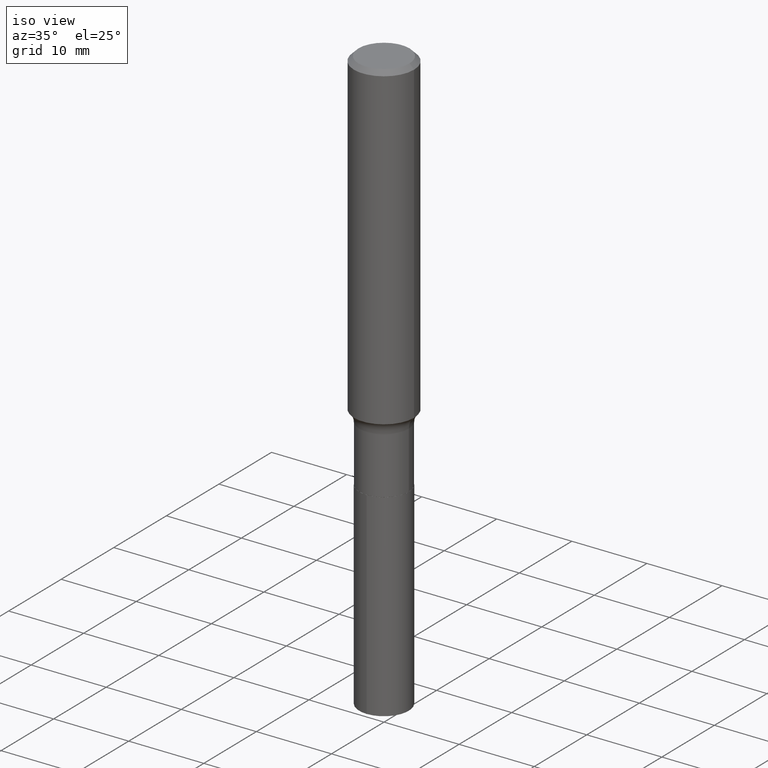
[diagram: clean part render]
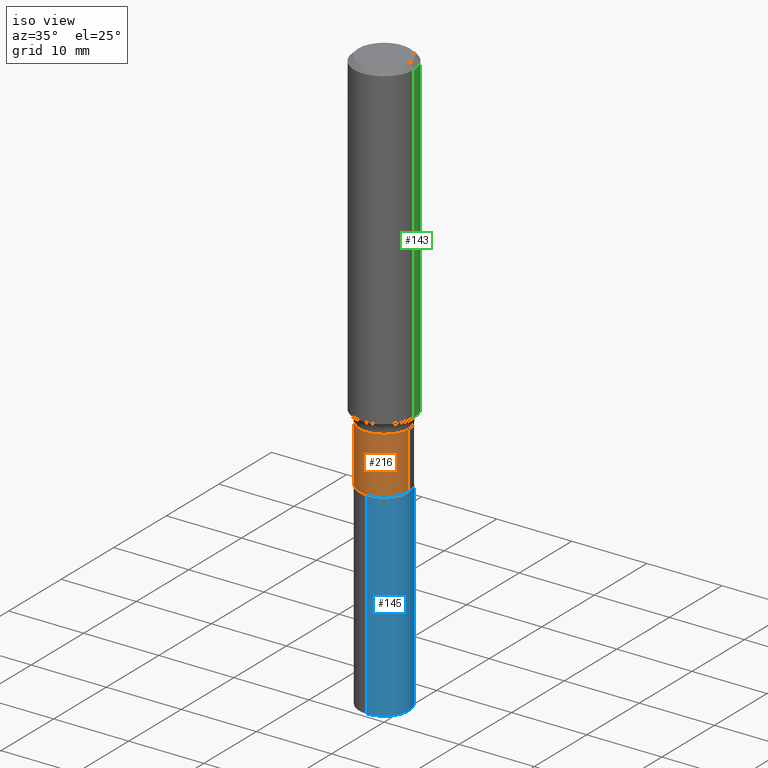
[diagram: same view with three faces highlighted in distinct colors, each labeled with its STEP entity id]
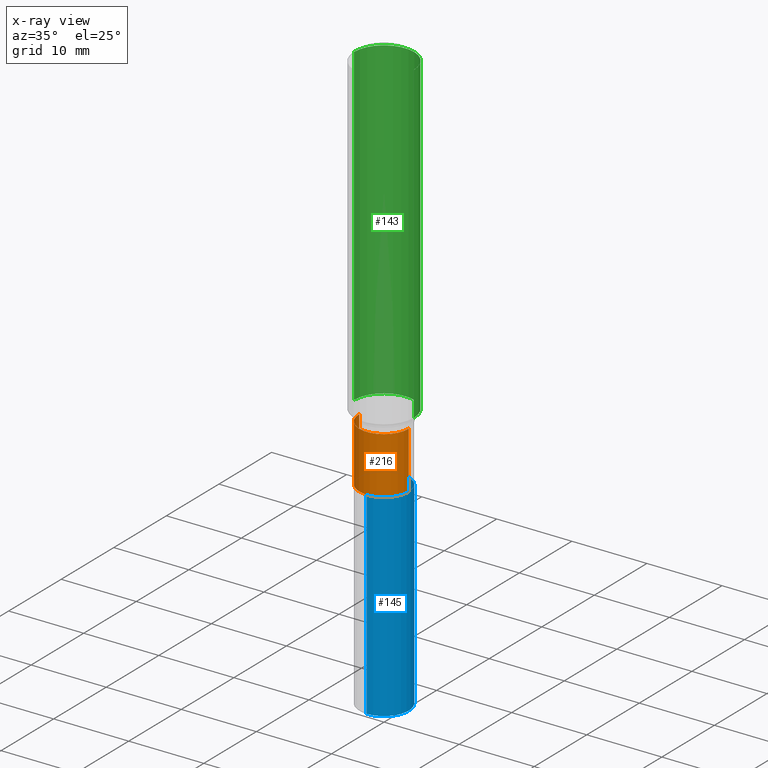
[diagram: x-ray of the same camera — body ghosted, the three highlighted faces saturated]
A machine part, iso view with three faces highlighted in distinct colors.
The next image is the same camera in x-ray (body ghosted, the three faces saturated) — at least one of them is partly hidden behind the body in this view.
Their STEP definitions:

[orange] entity #216 — the highlighted cylindrical surface (edge-blend (fillet) strip) has radius 3.2995 mm, axis along (-0, 0, 1).
#18 = AXIS2_PLACEMENT_3D ( 'NONE', #47, #172, #331 ) ;
#20 = CARTESIAN_POINT ( 'NONE',  ( 0.1298999999999999877, -7.997936302887991205E-15, -2.030900000000000372 ) ) ;
#21 = CYLINDRICAL_SURFACE ( 'NONE', #18, 0.1298999999999999877 ) ;
#25 = VERTEX_POINT ( 'NONE', #377 ) ;
#47 = CARTESIAN_POINT ( 'NONE',  ( 0.000000000000000000, 0.000000000000000000, 0.000000000000000000 ) ) ;
#53 = ORIENTED_EDGE ( 'NONE', *, *, #210, .T. ) ;
#96 = FACE_OUTER_BOUND ( 'NONE', #343, .T. ) ;
#103 = LINE ( 'NONE', #262, #252 ) ;
#104 = CIRCLE ( 'NONE', #382, 0.1298999999999999877 ) ;
#115 = ORIENTED_EDGE ( 'NONE', *, *, #486, .F. ) ;
#134 = DIRECTION ( 'NONE',  ( 1.000000000000000000, -6.982962677686268288E-15, 0.000000000000000000 ) ) ;
#135 = CIRCLE ( 'NONE', #468, 0.1298999999999999599 ) ;
#163 = CARTESIAN_POINT ( 'NONE',  ( -0.1298999999999999599, -5.647099995615719937E-15, -1.732600000000000362 ) ) ;
#165 = EDGE_CURVE ( 'NONE', #25, #480, #104, .T. ) ;
#172 = DIRECTION ( 'NONE',  ( -2.445468806185136597E-29, 3.491481338843145583E-15, 1.000000000000000000 ) ) ;
#190 = VECTOR ( 'NONE', #233, 39.37007874015748143 ) ;
#210 = EDGE_CURVE ( 'NONE', #480, #415, #270, .T. ) ;
#216 = ADVANCED_FACE ( 'NONE', ( #96 ), #21, .T. ) ;
#228 = EDGE_CURVE ( 'NONE', #25, #410, #103, .T. ) ;
#233 = DIRECTION ( 'NONE',  ( -2.445468806185136877E-29, 3.491481338843145188E-15, 1.000000000000000000 ) ) ;
#237 = ORIENTED_EDGE ( 'NONE', *, *, #228, .F. ) ;
#252 = VECTOR ( 'NONE', #411, 39.37007874015748143 ) ;
#262 = CARTESIAN_POINT ( 'NONE',  ( -0.1298999999999999877, 9.229950137523700540E-16, -6.389696682241121810E-30 ) ) ;
#270 = LINE ( 'NONE', #304, #190 ) ;
#293 = DIRECTION ( 'NONE',  ( -2.445468806185136597E-29, 3.491481338843145583E-15, 1.000000000000000000 ) ) ;
#295 = CARTESIAN_POINT ( 'NONE',  ( 4.237019253596368185E-29, -6.049340567679635558E-15, -1.732600000000000362 ) ) ;
#304 = CARTESIAN_POINT ( 'NONE',  ( 0.1298999999999999877, -9.070868518314457948E-16, 6.334153631758919429E-30 ) ) ;
#331 = DIRECTION ( 'NONE',  ( 1.000000000000000000, -6.982962677686265133E-15, 4.876176775795935232E-29 ) ) ;
#343 = EDGE_LOOP ( 'NONE', ( #237, #441, #53, #115 ) ) ;
#365 = CARTESIAN_POINT ( 'NONE',  ( 4.966502598481394648E-29, -7.090849451056544819E-15, -2.030900000000000372 ) ) ;
#377 = CARTESIAN_POINT ( 'NONE',  ( -0.1299000000000000155, -5.647099995615719937E-15, -2.030900000000000372 ) ) ;
#381 = CARTESIAN_POINT ( 'NONE',  ( 0.1298999999999999599, -6.956427419511081156E-15, -1.732600000000000362 ) ) ;
#382 = AXIS2_PLACEMENT_3D ( 'NONE', #365, #479, #134 ) ;
#410 = VERTEX_POINT ( 'NONE', #163 ) ;
#411 = DIRECTION ( 'NONE',  ( -2.445468806185136877E-29, 3.491481338843145188E-15, 1.000000000000000000 ) ) ;
#415 = VERTEX_POINT ( 'NONE', #381 ) ;
#435 = DIRECTION ( 'NONE',  ( 1.000000000000000000, -6.982962677686269866E-15, 0.000000000000000000 ) ) ;
#441 = ORIENTED_EDGE ( 'NONE', *, *, #165, .T. ) ;
#468 = AXIS2_PLACEMENT_3D ( 'NONE', #295, #293, #435 ) ;
#479 = DIRECTION ( 'NONE',  ( -2.445468806185136597E-29, 3.491481338843145583E-15, 1.000000000000000000 ) ) ;
#480 = VERTEX_POINT ( 'NONE', #20 ) ;
#486 = EDGE_CURVE ( 'NONE', #410, #415, #135, .T. ) ;

[blue] entity #145 — the highlighted cylindrical surface (edge-blend (fillet) strip) has radius 3.2995 mm, axis along (-0, 0, 1).
#2 = ORIENTED_EDGE ( 'NONE', *, *, #159, .F. ) ;
#11 = CARTESIAN_POINT ( 'NONE',  ( 9.229950137524451930E-16, 0.1298999999999928823, -2.031400000000000539 ) ) ;
#19 = DIRECTION ( 'NONE',  ( -6.982962677686266711E-15, -1.000000000000000000, 4.206078512185163024E-15 ) ) ;
#50 = CYLINDRICAL_SURFACE ( 'NONE', #339, 0.1298999999999999877 ) ;
#61 = EDGE_CURVE ( 'NONE', #108, #161, #369, .T. ) ;
#62 = CARTESIAN_POINT ( 'NONE',  ( -9.070868518313962938E-16, -0.1299000000000070654, -2.031399999999999650 ) ) ;
#72 = AXIS2_PLACEMENT_3D ( 'NONE', #358, #327, #19 ) ;
#77 = LINE ( 'NONE', #384, #223 ) ;
#81 = CARTESIAN_POINT ( 'NONE',  ( -9.070868518313706558E-16, -0.1299000000000107014, -3.069242687324619467 ) ) ;
#83 = DIRECTION ( 'NONE',  ( -2.445412223702241221E-29, 3.491562368179126260E-15, 1.000000000000000000 ) ) ;
#89 = ORIENTED_EDGE ( 'NONE', *, *, #267, .F. ) ;
#91 = DIRECTION ( 'NONE',  ( -2.445412223702241221E-29, 3.491562368179126260E-15, 1.000000000000000000 ) ) ;
#108 = VERTEX_POINT ( 'NONE', #81 ) ;
#114 = DIRECTION ( 'NONE',  ( -2.445412223702241221E-29, 3.491562368179126654E-15, 1.000000000000000000 ) ) ;
#116 = LINE ( 'NONE', #183, #375 ) ;
#145 = ADVANCED_FACE ( 'NONE', ( #247 ), #50, .T. ) ;
#147 = AXIS2_PLACEMENT_3D ( 'NONE', #438, #114, #255 ) ;
#159 = EDGE_CURVE ( 'NONE', #191, #265, #427, .T. ) ;
#161 = VERTEX_POINT ( 'NONE', #467 ) ;
#183 = CARTESIAN_POINT ( 'NONE',  ( -9.070868518313962938E-16, -0.1299000000000070654, -2.031399999999999650 ) ) ;
#191 = VERTEX_POINT ( 'NONE', #62 ) ;
#223 = VECTOR ( 'NONE', #83, 39.37007874015748143 ) ;
#247 = FACE_OUTER_BOUND ( 'NONE', #273, .T. ) ;
#255 = DIRECTION ( 'NONE',  ( -6.982962677686266711E-15, -1.000000000000000000, 4.206078512185163024E-15 ) ) ;
#265 = VERTEX_POINT ( 'NONE', #11 ) ;
#267 = EDGE_CURVE ( 'NONE', #108, #191, #116, .T. ) ;
#273 = EDGE_LOOP ( 'NONE', ( #485, #455, #2, #89 ) ) ;
#292 = DIRECTION ( 'NONE',  ( -6.982962677686266711E-15, -1.000000000000000000, 4.206078512185163024E-15 ) ) ;
#327 = DIRECTION ( 'NONE',  ( -2.445412223702241221E-29, 3.491562368179126654E-15, 1.000000000000000000 ) ) ;
#339 = AXIS2_PLACEMENT_3D ( 'NONE', #364, #469, #292 ) ;
#358 = CARTESIAN_POINT ( 'NONE',  ( 4.967725332884486328E-29, -7.092595191725966323E-15, -2.031400000000000095 ) ) ;
#364 = CARTESIAN_POINT ( 'NONE',  ( 4.967725332884486328E-29, -7.092595191725966323E-15, -2.031400000000000095 ) ) ;
#369 = CIRCLE ( 'NONE', #147, 0.1298999999999999877 ) ;
#375 = VECTOR ( 'NONE', #91, 39.37007874015748143 ) ;
#384 = CARTESIAN_POINT ( 'NONE',  ( 9.229950137524195551E-16, 0.1298999999999929100, -2.031400000000000539 ) ) ;
#427 = CIRCLE ( 'NONE', #72, 0.1298999999999999877 ) ;
#438 = CARTESIAN_POINT ( 'NONE',  ( 7.505678526748094738E-29, -1.071628766287850460E-14, -3.069242687324619911 ) ) ;
#455 = ORIENTED_EDGE ( 'NONE', *, *, #461, .T. ) ;
#461 = EDGE_CURVE ( 'NONE', #161, #265, #77, .T. ) ;
#467 = CARTESIAN_POINT ( 'NONE',  ( 9.229950137524449958E-16, 0.1298999999999892463, -3.069242687324620800 ) ) ;
#469 = DIRECTION ( 'NONE',  ( -2.445412223702241221E-29, 3.491562368179126654E-15, 1.000000000000000000 ) ) ;
#485 = ORIENTED_EDGE ( 'NONE', *, *, #61, .T. ) ;

[green] entity #143 — the highlighted cylindrical surface (partial cylindrical patch) has radius 4.0005 mm, axis along (-0, 0, 1).
#27 = ORIENTED_EDGE ( 'NONE', *, *, #453, .T. ) ;
#37 = DIRECTION ( 'NONE',  ( -2.445468806185136597E-29, 3.491481338843145583E-15, 1.000000000000000000 ) ) ;
#63 = ORIENTED_EDGE ( 'NONE', *, *, #432, .F. ) ;
#84 = VERTEX_POINT ( 'NONE', #257 ) ;
#90 = DIRECTION ( 'NONE',  ( 1.000000000000000000, -6.982962677686267499E-15, 4.876176775795936353E-29 ) ) ;
#93 = CIRCLE ( 'NONE', #430, 0.1575000000000001954 ) ;
#105 = VERTEX_POINT ( 'NONE', #277 ) ;
#121 = VECTOR ( 'NONE', #195, 39.37007874015748143 ) ;
#137 = DIRECTION ( 'NONE',  ( -2.445468806185136597E-29, 3.491481338843145583E-15, 1.000000000000000000 ) ) ;
#143 = ADVANCED_FACE ( 'NONE', ( #287 ), #218, .T. ) ;
#156 = AXIS2_PLACEMENT_3D ( 'NONE', #175, #137, #90 ) ;
#157 = CARTESIAN_POINT ( 'NONE',  ( 0.1575000000000002232, -6.941308745199630134E-15, -1.673069839576900142 ) ) ;
#160 = CARTESIAN_POINT ( 'NONE',  ( 5.777420054612421980E-31, -8.248624663016985234E-17, -0.02362500000000015282 ) ) ;
#175 = CARTESIAN_POINT ( 'NONE',  ( 0.000000000000000000, 0.000000000000000000, 0.000000000000000000 ) ) ;
#179 = CARTESIAN_POINT ( 'NONE',  ( 0.1575000000000000844, -1.099816621735587677E-15, 7.679978421878603638E-30 ) ) ;
#195 = DIRECTION ( 'NONE',  ( -2.445468806185136877E-29, 3.491481338843145188E-15, 1.000000000000000000 ) ) ;
#196 = EDGE_CURVE ( 'NONE', #378, #84, #341, .T. ) ;
#207 = VECTOR ( 'NONE', #294, 39.37007874015748143 ) ;
#218 = CYLINDRICAL_SURFACE ( 'NONE', #156, 0.1575000000000000844 ) ;
#239 = DIRECTION ( 'NONE',  ( 1.000000000000000000, -6.982962677686265922E-15, 0.000000000000000000 ) ) ;
#257 = CARTESIAN_POINT ( 'NONE',  ( -0.1575000000000000011, -1.842884376224946844E-15, -0.02362500000000015282 ) ) ;
#277 = CARTESIAN_POINT ( 'NONE',  ( 0.1575000000000000011, -1.182302868365756679E-15, -0.02362500000000015282 ) ) ;
#279 = CARTESIAN_POINT ( 'NONE',  ( 4.091440103254479694E-29, -5.841492123464042654E-15, -1.673069839576900142 ) ) ;
#287 = FACE_OUTER_BOUND ( 'NONE', #439, .T. ) ;
#294 = DIRECTION ( 'NONE',  ( -2.445468806185136877E-29, 3.491481338843145188E-15, 1.000000000000000000 ) ) ;
#307 = ORIENTED_EDGE ( 'NONE', *, *, #308, .F. ) ;
#308 = EDGE_CURVE ( 'NONE', #373, #105, #484, .T. ) ;
#314 = CARTESIAN_POINT ( 'NONE',  ( -0.1575000000000002232, -4.722387314641883473E-15, -1.673069839576900142 ) ) ;
#329 = AXIS2_PLACEMENT_3D ( 'NONE', #160, #37, #353 ) ;
#341 = LINE ( 'NONE', #490, #121 ) ;
#352 = ORIENTED_EDGE ( 'NONE', *, *, #196, .T. ) ;
#353 = DIRECTION ( 'NONE',  ( 1.000000000000000000, -6.982962677686265922E-15, 0.000000000000000000 ) ) ;
#371 = CIRCLE ( 'NONE', #329, 0.1575000000000000011 ) ;
#373 = VERTEX_POINT ( 'NONE', #157 ) ;
#378 = VERTEX_POINT ( 'NONE', #314 ) ;
#419 = DIRECTION ( 'NONE',  ( -2.445468806185136597E-29, 3.491481338843145583E-15, 1.000000000000000000 ) ) ;
#430 = AXIS2_PLACEMENT_3D ( 'NONE', #279, #419, #239 ) ;
#432 = EDGE_CURVE ( 'NONE', #105, #84, #371, .T. ) ;
#439 = EDGE_LOOP ( 'NONE', ( #27, #352, #63, #307 ) ) ;
#453 = EDGE_CURVE ( 'NONE', #373, #378, #93, .T. ) ;
#484 = LINE ( 'NONE', #179, #207 ) ;
#490 = CARTESIAN_POINT ( 'NONE',  ( -0.1575000000000000844, 1.119104808822158392E-15, -7.747322767151481189E-30 ) ) ;